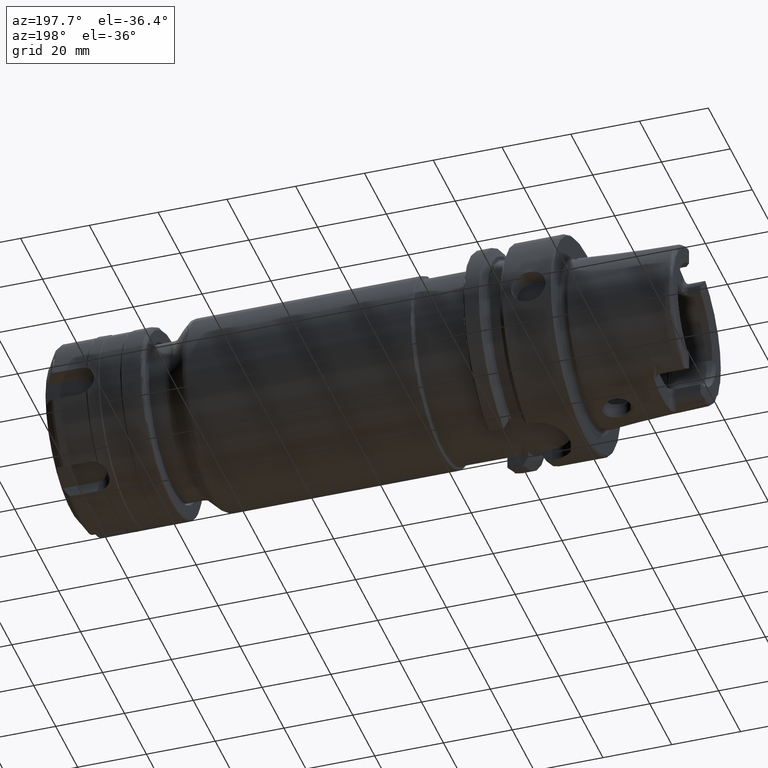
[diagram: clean part render]
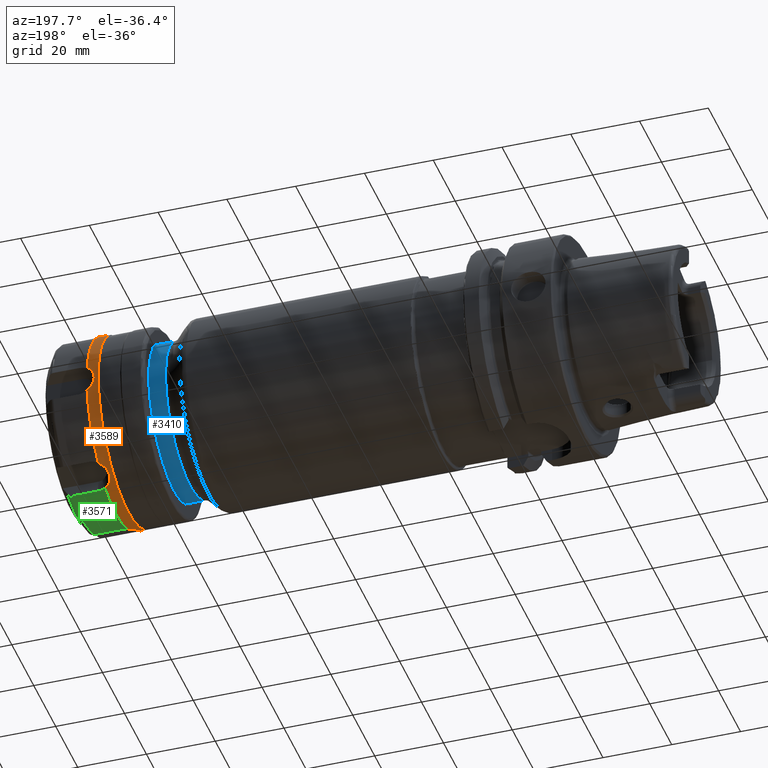
[diagram: same view with three faces highlighted in distinct colors, each labeled with its STEP entity id]
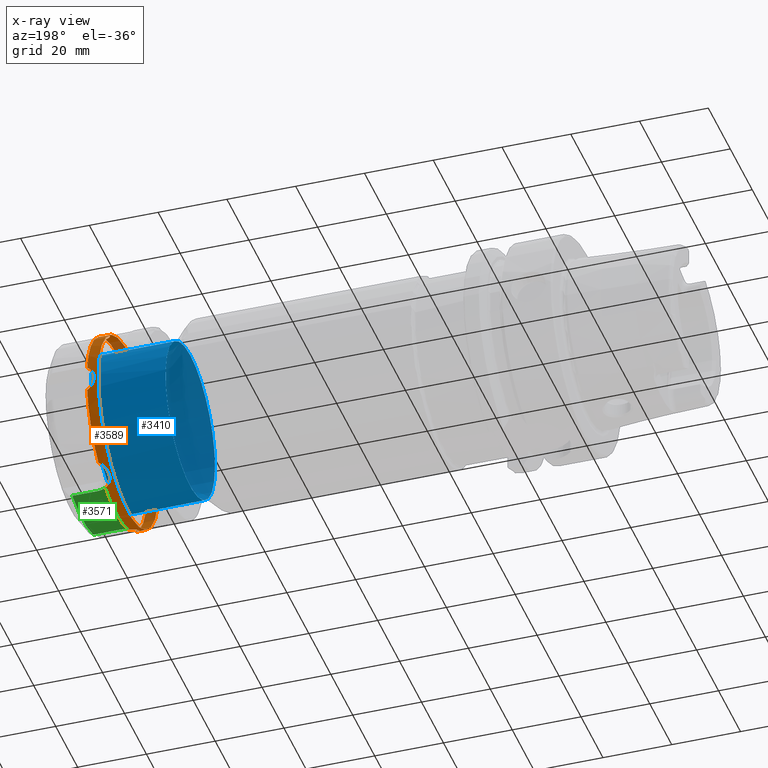
[diagram: x-ray of the same camera — body ghosted, the three highlighted faces saturated]
A machine part, auxiliary view with three faces highlighted in distinct colors.
The next image is the same camera in x-ray (body ghosted, the three faces saturated) — at least one of them is partly hidden behind the body in this view.
Their STEP definitions:

[orange] entity #3589 — the highlighted cylindrical surface (bore or boss wall) has radius 27.5 mm, axis along (1, 0, 0).
#229=B_SPLINE_CURVE_WITH_KNOTS('',3,(#6915,#6916,#6917,#6918,#6919,#6920,
#6921,#6922,#6923,#6924,#6925,#6926,#6927,#6928),.UNSPECIFIED.,.F.,.F.,
(4,2,2,2,2,2,4),(1.67211865122353,1.76211058881289,1.93906337275556,2.11601615669822,
2.29296894064089,2.46992172458355,2.55991366217291),.UNSPECIFIED.);
#236=B_SPLINE_CURVE_WITH_KNOTS('',3,(#7007,#7008,#7009,#7010,#7011,#7012,
#7013,#7014,#7015,#7016,#7017,#7018,#7019,#7020),.UNSPECIFIED.,.F.,.F.,
(4,2,2,2,2,2,4),(1.67211865122353,1.76211058881289,1.93906337275556,2.11601615669822,
2.29296894064089,2.46992172458355,2.55991366217291),.UNSPECIFIED.);
#243=B_SPLINE_CURVE_WITH_KNOTS('',3,(#7103,#7104,#7105,#7106,#7107,#7108,
#7109,#7110),.UNSPECIFIED.,.F.,.F.,(4,2,2,4),(2.11601615669822,2.29296894064089,
2.46992172458355,2.55991366217291),.UNSPECIFIED.);
#244=B_SPLINE_CURVE_WITH_KNOTS('',3,(#7112,#7113,#7114,#7115,#7116,#7117,
#7118,#7119),.UNSPECIFIED.,.F.,.F.,(4,2,2,4),(1.67211865122353,1.76211058881289,
1.93906337275556,2.11601615669822),.UNSPECIFIED.);
#251=B_SPLINE_CURVE_WITH_KNOTS('',3,(#7198,#7199,#7200,#7201,#7202,#7203,
#7204,#7205,#7206,#7207,#7208,#7209,#7210,#7211),.UNSPECIFIED.,.F.,.F.,
(4,2,2,2,2,2,4),(1.67211865122353,1.76211058881289,1.93906337275556,2.11601615669822,
2.29296894064089,2.46992172458355,2.55991366217291),.UNSPECIFIED.);
#258=B_SPLINE_CURVE_WITH_KNOTS('',3,(#7290,#7291,#7292,#7293,#7294,#7295,
#7296,#7297,#7298,#7299,#7300,#7301,#7302,#7303),.UNSPECIFIED.,.F.,.F.,
(4,2,2,2,2,2,4),(1.67211865122353,1.76211058881289,1.93906337275556,2.11601615669822,
2.29296894064089,2.46992172458355,2.55991366217292),.UNSPECIFIED.);
#267=B_SPLINE_CURVE_WITH_KNOTS('',3,(#7443,#7444,#7445,#7446,#7447,#7448,
#7449,#7450,#7451,#7452,#7453,#7454,#7455,#7456),.UNSPECIFIED.,.F.,.F.,
(4,2,2,2,2,2,4),(1.67211865122336,1.76211058881289,1.93906337275556,2.11601615669822,
2.29296894064089,2.46992172458355,2.55991366217308),.UNSPECIFIED.);
#362=CYLINDRICAL_SURFACE('',#4081,27.5);
#563=FACE_OUTER_BOUND('',#783,.T.);
#783=EDGE_LOOP('',(#3315,#3316,#3317,#3318,#3319,#3320,#3321,#3322,#3323,
#3324,#3325,#3326,#3327,#3328,#3329,#3330));
#955=LINE('',#7559,#1123);
#1123=VECTOR('',#5108,27.5);
#1302=CIRCLE('',#4008,27.5);
#1303=CIRCLE('',#4010,27.5);
#1304=CIRCLE('',#4012,27.5);
#1305=CIRCLE('',#4014,27.5);
#1306=CIRCLE('',#4016,27.5);
#1342=CIRCLE('',#4080,27.5);
#1343=CIRCLE('',#4082,27.5);
#1585=VERTEX_POINT('',#6909);
#1586=VERTEX_POINT('',#6914);
#1601=VERTEX_POINT('',#7001);
#1602=VERTEX_POINT('',#7006);
#1618=VERTEX_POINT('',#7097);
#1619=VERTEX_POINT('',#7102);
#1620=VERTEX_POINT('',#7111);
#1635=VERTEX_POINT('',#7192);
#1636=VERTEX_POINT('',#7197);
#1651=VERTEX_POINT('',#7284);
#1652=VERTEX_POINT('',#7289);
#1667=VERTEX_POINT('',#7413);
#1668=VERTEX_POINT('',#7420);
#1699=VERTEX_POINT('',#7554);
#2069=EDGE_CURVE('',#1586,#1585,#229,.T.);
#2088=EDGE_CURVE('',#1602,#1601,#236,.T.);
#2108=EDGE_CURVE('',#1619,#1618,#243,.T.);
#2109=EDGE_CURVE('',#1620,#1619,#244,.T.);
#2128=EDGE_CURVE('',#1636,#1635,#251,.T.);
#2147=EDGE_CURVE('',#1652,#1651,#258,.T.);
#2184=EDGE_CURVE('',#1586,#1667,#1302,.T.);
#2187=EDGE_CURVE('',#1668,#1651,#1303,.T.);
#2188=EDGE_CURVE('',#1652,#1635,#1304,.T.);
#2189=EDGE_CURVE('',#1636,#1618,#1305,.T.);
#2190=EDGE_CURVE('',#1620,#1601,#1306,.T.);
#2196=EDGE_CURVE('',#1668,#1667,#267,.T.);
#2242=EDGE_CURVE('',#1699,#1699,#1342,.T.);
#2244=EDGE_CURVE('',#1602,#1585,#1343,.T.);
#2245=EDGE_CURVE('',#1619,#1699,#955,.T.);
#3315=ORIENTED_EDGE('',*,*,#2069,.T.);
#3316=ORIENTED_EDGE('',*,*,#2244,.F.);
#3317=ORIENTED_EDGE('',*,*,#2088,.T.);
#3318=ORIENTED_EDGE('',*,*,#2190,.F.);
#3319=ORIENTED_EDGE('',*,*,#2109,.T.);
#3320=ORIENTED_EDGE('',*,*,#2245,.T.);
#3321=ORIENTED_EDGE('',*,*,#2242,.T.);
#3322=ORIENTED_EDGE('',*,*,#2245,.F.);
#3323=ORIENTED_EDGE('',*,*,#2108,.T.);
#3324=ORIENTED_EDGE('',*,*,#2189,.F.);
#3325=ORIENTED_EDGE('',*,*,#2128,.T.);
#3326=ORIENTED_EDGE('',*,*,#2188,.F.);
#3327=ORIENTED_EDGE('',*,*,#2147,.T.);
#3328=ORIENTED_EDGE('',*,*,#2187,.F.);
#3329=ORIENTED_EDGE('',*,*,#2196,.T.);
#3330=ORIENTED_EDGE('',*,*,#2184,.F.);
#3589=ADVANCED_FACE('',(#563),#362,.T.);
#4008=AXIS2_PLACEMENT_3D('',#7414,#4942,#4943);
#4010=AXIS2_PLACEMENT_3D('',#7425,#4946,#4947);
#4012=AXIS2_PLACEMENT_3D('',#7427,#4950,#4951);
#4014=AXIS2_PLACEMENT_3D('',#7429,#4954,#4955);
#4016=AXIS2_PLACEMENT_3D('',#7431,#4958,#4959);
#4080=AXIS2_PLACEMENT_3D('',#7555,#5101,#5102);
#4081=AXIS2_PLACEMENT_3D('',#7557,#5104,#5105);
#4082=AXIS2_PLACEMENT_3D('',#7558,#5106,#5107);
#4942=DIRECTION('center_axis',(1.,0.,0.));
#4943=DIRECTION('ref_axis',(0.,0.,-1.));
#4946=DIRECTION('center_axis',(1.,0.,0.));
#4947=DIRECTION('ref_axis',(0.,0.,-1.));
#4950=DIRECTION('center_axis',(1.,0.,0.));
#4951=DIRECTION('ref_axis',(0.,0.,-1.));
#4954=DIRECTION('center_axis',(1.,0.,0.));
#4955=DIRECTION('ref_axis',(0.,0.,-1.));
#4958=DIRECTION('center_axis',(1.,0.,0.));
#4959=DIRECTION('ref_axis',(0.,0.,-1.));
#5101=DIRECTION('center_axis',(1.,0.,0.));
#5102=DIRECTION('ref_axis',(0.,0.,-1.));
#5104=DIRECTION('center_axis',(1.,0.,0.));
#5105=DIRECTION('ref_axis',(0.,1.,0.));
#5106=DIRECTION('center_axis',(1.,0.,0.));
#5107=DIRECTION('ref_axis',(0.,0.,-1.));
#5108=DIRECTION('',(-1.,0.,0.));
#6909=CARTESIAN_POINT('',(16.6535898384862,10.2803707243943,-25.5061556838544));
#6914=CARTESIAN_POINT('',(16.6535898384862,16.9487934129016,-21.6561400495745));
#6915=CARTESIAN_POINT('Ctrl Pts',(16.6535898384862,16.9487934129016,-21.6561400495745));
#6916=CARTESIAN_POINT('Ctrl Pts',(16.3884702877858,16.8149042778394,-21.7609260033597));
#6917=CARTESIAN_POINT('Ctrl Pts',(16.1442823730407,16.6610562821937,-21.87926723216));
#6918=CARTESIAN_POINT('Ctrl Pts',(15.5022075977321,16.1681339512873,-22.2487798936235));
#6919=CARTESIAN_POINT('Ctrl Pts',(15.129202068651,15.745930874919,-22.5531400803684));
#6920=CARTESIAN_POINT('Ctrl Pts',(14.6318687392365,14.7926188273117,-23.189585921526));
#6921=CARTESIAN_POINT('Ctrl Pts',(14.5077220395086,14.2608186872157,-23.520777297501));
#6922=CARTESIAN_POINT('Ctrl Pts',(14.5077220395086,13.2391813127842,-24.1106199106432));
#6923=CARTESIAN_POINT('Ctrl Pts',(14.6318687392365,12.6864610976276,-24.4055766537149));
#6924=CARTESIAN_POINT('Ctrl Pts',(15.129202068651,11.6586268072485,-24.9129461840978));
#6925=CARTESIAN_POINT('Ctrl Pts',(15.5022075977321,11.1839416154427,-25.1264046804163));
#6926=CARTESIAN_POINT('Ctrl Pts',(16.1442823730407,10.6174730981421,-25.3685316103421));
#6927=CARTESIAN_POINT('Ctrl Pts',(16.3884702877858,10.4380625898632,-25.4425972684924));
#6928=CARTESIAN_POINT('Ctrl Pts',(16.6535898384862,10.2803707243943,-25.5061556838544));
#7001=CARTESIAN_POINT('',(16.6535898384862,-16.9487934129016,-21.6561400495745));
#7006=CARTESIAN_POINT('',(16.6535898384862,-10.2803707243943,-25.5061556838544));
#7007=CARTESIAN_POINT('Ctrl Pts',(16.6535898384862,-10.2803707243943,-25.5061556838544));
#7008=CARTESIAN_POINT('Ctrl Pts',(16.3884702877858,-10.4380625898632,-25.4425972684924));
#7009=CARTESIAN_POINT('Ctrl Pts',(16.1442823730407,-10.6174730981421,-25.3685316103421));
#7010=CARTESIAN_POINT('Ctrl Pts',(15.5022075977321,-11.1839416154427,-25.1264046804163));
#7011=CARTESIAN_POINT('Ctrl Pts',(15.129202068651,-11.6586268072485,-24.9129461840978));
#7012=CARTESIAN_POINT('Ctrl Pts',(14.6318687392365,-12.6864610976277,-24.4055766537149));
#7013=CARTESIAN_POINT('Ctrl Pts',(14.5077220395086,-13.2391813127843,-24.1106199106432));
#7014=CARTESIAN_POINT('Ctrl Pts',(14.5077220395086,-14.2608186872158,-23.5207772975009));
#7015=CARTESIAN_POINT('Ctrl Pts',(14.6318687392365,-14.7926188273117,-23.189585921526));
#7016=CARTESIAN_POINT('Ctrl Pts',(15.1292020686509,-15.7459308749191,-22.5531400803684));
#7017=CARTESIAN_POINT('Ctrl Pts',(15.5022075977321,-16.1681339512874,-22.2487798936235));
#7018=CARTESIAN_POINT('Ctrl Pts',(16.1442823730407,-16.6610562821938,-21.87926723216));
#7019=CARTESIAN_POINT('Ctrl Pts',(16.3884702877858,-16.8149042778394,-21.7609260033597));
#7020=CARTESIAN_POINT('Ctrl Pts',(16.6535898384862,-16.9487934129016,-21.6561400495745));
#7097=CARTESIAN_POINT('',(16.6535898384862,-27.2291641372959,3.8500156342799));
#7102=CARTESIAN_POINT('',(14.5077220395086,-27.5,3.28389883305486E-16));
#7103=CARTESIAN_POINT('Ctrl Pts',(14.5077220395086,-27.5,4.30211422042248E-15));
#7104=CARTESIAN_POINT('Ctrl Pts',(14.5077220395086,-27.5,0.58984261314222));
#7105=CARTESIAN_POINT('Ctrl Pts',(14.6318687392365,-27.4790799249393,1.21599073218888));
#7106=CARTESIAN_POINT('Ctrl Pts',(15.129202068651,-27.4045576821675,2.35980610372945));
#7107=CARTESIAN_POINT('Ctrl Pts',(15.5022075977321,-27.3520755667301,2.87762478679277));
#7108=CARTESIAN_POINT('Ctrl Pts',(16.1442823730407,-27.2785293803359,3.48926437818212));
#7109=CARTESIAN_POINT('Ctrl Pts',(16.3884702877858,-27.2529668677026,3.68167126513267));
#7110=CARTESIAN_POINT('Ctrl Pts',(16.6535898384862,-27.2291641372959,3.8500156342799));
#7111=CARTESIAN_POINT('',(16.6535898384862,-27.2291641372959,-3.85001563427989));
#7112=CARTESIAN_POINT('Ctrl Pts',(16.6535898384862,-27.2291641372959,-3.85001563427989));
#7113=CARTESIAN_POINT('Ctrl Pts',(16.3884702877858,-27.2529668677026,-3.68167126513266));
#7114=CARTESIAN_POINT('Ctrl Pts',(16.1442823730407,-27.2785293803359,-3.48926437818212));
#7115=CARTESIAN_POINT('Ctrl Pts',(15.5022075977321,-27.3520755667301,-2.87762478679276));
#7116=CARTESIAN_POINT('Ctrl Pts',(15.129202068651,-27.4045576821675,-2.35980610372944));
#7117=CARTESIAN_POINT('Ctrl Pts',(14.6318687392365,-27.4790799249393,-1.21599073218887));
#7118=CARTESIAN_POINT('Ctrl Pts',(14.5077220395086,-27.5,-0.589842613142211));
#7119=CARTESIAN_POINT('Ctrl Pts',(14.5077220395086,-27.5,5.55111512312578E-15));
#7192=CARTESIAN_POINT('',(16.6535898384862,-10.2803707243943,25.5061556838544));
#7197=CARTESIAN_POINT('',(16.6535898384862,-16.9487934129016,21.6561400495745));
#7198=CARTESIAN_POINT('Ctrl Pts',(16.6535898384862,-16.9487934129016,21.6561400495745));
#7199=CARTESIAN_POINT('Ctrl Pts',(16.3884702877858,-16.8149042778394,21.7609260033597));
#7200=CARTESIAN_POINT('Ctrl Pts',(16.1442823730407,-16.6610562821938,21.87926723216));
#7201=CARTESIAN_POINT('Ctrl Pts',(15.5022075977321,-16.1681339512874,22.2487798936235));
#7202=CARTESIAN_POINT('Ctrl Pts',(15.129202068651,-15.745930874919,22.5531400803684));
#7203=CARTESIAN_POINT('Ctrl Pts',(14.6318687392365,-14.7926188273117,23.189585921526));
#7204=CARTESIAN_POINT('Ctrl Pts',(14.5077220395086,-14.2608186872157,23.520777297501));
#7205=CARTESIAN_POINT('Ctrl Pts',(14.5077220395086,-13.2391813127842,24.1106199106432));
#7206=CARTESIAN_POINT('Ctrl Pts',(14.6318687392365,-12.6864610976277,24.4055766537149));
#7207=CARTESIAN_POINT('Ctrl Pts',(15.129202068651,-11.6586268072485,24.9129461840978));
#7208=CARTESIAN_POINT('Ctrl Pts',(15.5022075977321,-11.1839416154427,25.1264046804163));
#7209=CARTESIAN_POINT('Ctrl Pts',(16.1442823730407,-10.6174730981421,25.3685316103421));
#7210=CARTESIAN_POINT('Ctrl Pts',(16.3884702877858,-10.4380625898632,25.4425972684924));
#7211=CARTESIAN_POINT('Ctrl Pts',(16.6535898384862,-10.2803707243943,25.5061556838544));
#7284=CARTESIAN_POINT('',(16.6535898384862,16.9487934129016,21.6561400495745));
#7289=CARTESIAN_POINT('',(16.6535898384862,10.2803707243943,25.5061556838544));
#7290=CARTESIAN_POINT('Ctrl Pts',(16.6535898384862,10.2803707243943,25.5061556838544));
#7291=CARTESIAN_POINT('Ctrl Pts',(16.3884702877858,10.4380625898632,25.4425972684924));
#7292=CARTESIAN_POINT('Ctrl Pts',(16.1442823730407,10.6174730981421,25.3685316103421));
#7293=CARTESIAN_POINT('Ctrl Pts',(15.5022075977321,11.1839416154427,25.1264046804163));
#7294=CARTESIAN_POINT('Ctrl Pts',(15.129202068651,11.6586268072485,24.9129461840978));
#7295=CARTESIAN_POINT('Ctrl Pts',(14.6318687392365,12.6864610976277,24.4055766537149));
#7296=CARTESIAN_POINT('Ctrl Pts',(14.5077220395086,13.2391813127843,24.1106199106432));
#7297=CARTESIAN_POINT('Ctrl Pts',(14.5077220395086,14.2608186872158,23.520777297501));
#7298=CARTESIAN_POINT('Ctrl Pts',(14.6318687392365,14.7926188273117,23.189585921526));
#7299=CARTESIAN_POINT('Ctrl Pts',(15.129202068651,15.7459308749191,22.5531400803684));
#7300=CARTESIAN_POINT('Ctrl Pts',(15.5022075977321,16.1681339512874,22.2487798936235));
#7301=CARTESIAN_POINT('Ctrl Pts',(16.1442823730407,16.6610562821938,21.87926723216));
#7302=CARTESIAN_POINT('Ctrl Pts',(16.3884702877858,16.8149042778394,21.7609260033597));
#7303=CARTESIAN_POINT('Ctrl Pts',(16.6535898384862,16.9487934129016,21.6561400495745));
#7413=CARTESIAN_POINT('',(16.6535898384862,27.2291641372954,-3.85001563428317));
#7414=CARTESIAN_POINT('Origin',(16.6535898384862,0.,0.));
#7420=CARTESIAN_POINT('',(16.6535898384862,27.2291641372954,3.85001563428317));
#7425=CARTESIAN_POINT('Origin',(16.6535898384862,0.,0.));
#7427=CARTESIAN_POINT('Origin',(16.6535898384862,0.,0.));
#7429=CARTESIAN_POINT('Origin',(16.6535898384862,0.,0.));
#7431=CARTESIAN_POINT('Origin',(16.6535898384862,0.,0.));
#7443=CARTESIAN_POINT('Ctrl Pts',(16.6535898384877,27.2291641372957,3.85001563428085));
#7444=CARTESIAN_POINT('Ctrl Pts',(16.3884702877867,27.2529668677025,3.68167126513339));
#7445=CARTESIAN_POINT('Ctrl Pts',(16.1442823730411,27.2785293803358,3.48926437818251));
#7446=CARTESIAN_POINT('Ctrl Pts',(15.5022075977321,27.3520755667301,2.87762478679277));
#7447=CARTESIAN_POINT('Ctrl Pts',(15.129202068651,27.4045576821675,2.35980610372945));
#7448=CARTESIAN_POINT('Ctrl Pts',(14.6318687392365,27.4790799249393,1.21599073218888));
#7449=CARTESIAN_POINT('Ctrl Pts',(14.5077220395086,27.5,0.589842613142218));
#7450=CARTESIAN_POINT('Ctrl Pts',(14.5077220395086,27.5,-0.589842613142216));
#7451=CARTESIAN_POINT('Ctrl Pts',(14.6318687392365,27.4790799249393,-1.21599073218888));
#7452=CARTESIAN_POINT('Ctrl Pts',(15.129202068651,27.4045576821675,-2.35980610372944));
#7453=CARTESIAN_POINT('Ctrl Pts',(15.5022075977321,27.3520755667301,-2.87762478679276));
#7454=CARTESIAN_POINT('Ctrl Pts',(16.1442823730411,27.2785293803358,-3.48926437818251));
#7455=CARTESIAN_POINT('Ctrl Pts',(16.3884702877867,27.2529668677025,-3.68167126513339));
#7456=CARTESIAN_POINT('Ctrl Pts',(16.6535898384877,27.2291641372957,-3.85001563428085));
#7554=CARTESIAN_POINT('',(13.3464101615138,-27.5,-3.36777869765522E-15));
#7555=CARTESIAN_POINT('Origin',(13.3464101615138,0.,0.));
#7557=CARTESIAN_POINT('Origin',(15.,0.,0.));
#7558=CARTESIAN_POINT('Origin',(16.6535898384862,0.,0.));
#7559=CARTESIAN_POINT('',(15.,-27.5,-3.36777869765522E-15));

[blue] entity #3410 — the highlighted cylindrical surface (bore or boss wall) has radius 22.5 mm, axis along (1, 0, 0).
#318=CYLINDRICAL_SURFACE('',#3719,22.5);
#384=FACE_OUTER_BOUND('',#590,.T.);
#590=EDGE_LOOP('',(#2355,#2356,#2357,#2358,#2359));
#807=LINE('',#5446,#975);
#975=VECTOR('',#4236,22.5);
#1162=CIRCLE('',#3713,22.5);
#1163=CIRCLE('',#3714,22.5);
#1167=CIRCLE('',#3720,22.5);
#1387=VERTEX_POINT('',#5431);
#1388=VERTEX_POINT('',#5433);
#1391=VERTEX_POINT('',#5444);
#1760=EDGE_CURVE('',#1387,#1388,#1162,.T.);
#1761=EDGE_CURVE('',#1388,#1387,#1163,.T.);
#1766=EDGE_CURVE('',#1391,#1391,#1167,.T.);
#1767=EDGE_CURVE('',#1391,#1388,#807,.T.);
#2355=ORIENTED_EDGE('',*,*,#1766,.F.);
#2356=ORIENTED_EDGE('',*,*,#1767,.T.);
#2357=ORIENTED_EDGE('',*,*,#1760,.F.);
#2358=ORIENTED_EDGE('',*,*,#1761,.F.);
#2359=ORIENTED_EDGE('',*,*,#1767,.F.);
#3410=ADVANCED_FACE('',(#384),#318,.T.);
#3713=AXIS2_PLACEMENT_3D('',#5434,#4219,#4220);
#3714=AXIS2_PLACEMENT_3D('',#5435,#4221,#4222);
#3719=AXIS2_PLACEMENT_3D('',#5443,#4232,#4233);
#3720=AXIS2_PLACEMENT_3D('',#5445,#4234,#4235);
#4219=DIRECTION('center_axis',(-1.,0.,0.));
#4220=DIRECTION('ref_axis',(0.,-1.,1.83697019872103E-16));
#4221=DIRECTION('center_axis',(-1.,0.,0.));
#4222=DIRECTION('ref_axis',(0.,-1.,1.83697019872103E-16));
#4232=DIRECTION('center_axis',(1.,0.,0.));
#4233=DIRECTION('ref_axis',(0.,1.,0.));
#4234=DIRECTION('center_axis',(1.,0.,0.));
#4235=DIRECTION('ref_axis',(0.,0.,-1.));
#4236=DIRECTION('',(-1.,0.,0.));
#5431=CARTESIAN_POINT('',(115.342640687119,-2.75545529808154E-15,22.5));
#5433=CARTESIAN_POINT('',(115.342640687119,-22.5,-2.75545529808154E-15));
#5434=CARTESIAN_POINT('Origin',(115.342640687119,0.,0.));
#5435=CARTESIAN_POINT('Origin',(115.342640687119,0.,0.));
#5443=CARTESIAN_POINT('Origin',(125.6,0.,0.));
#5444=CARTESIAN_POINT('',(137.1,-22.5,-2.75545529808154E-15));
#5445=CARTESIAN_POINT('Origin',(137.1,0.,0.));
#5446=CARTESIAN_POINT('',(125.6,-22.5,-2.75545529808154E-15));

[green] entity #3571 — the highlighted cylindrical surface (partial cylindrical patch) has radius 27.3 mm, axis along (1, 0, 0).
#227=B_SPLINE_CURVE_WITH_KNOTS('',3,(#6903,#6904,#6905,#6906,#6907,#6908),
 .UNSPECIFIED.,.F.,.F.,(4,2,4),(-0.223700448985444,-0.173039057270461,0.),
 .UNSPECIFIED.);
#238=B_SPLINE_CURVE_WITH_KNOTS('',3,(#7026,#7027,#7028,#7029,#7030,#7031),
 .UNSPECIFIED.,.F.,.F.,(4,2,4),(1.38914211899874,1.5621811762692,1.61284256798419),
 .UNSPECIFIED.);
#356=CYLINDRICAL_SURFACE('',#4040,27.3);
#545=FACE_OUTER_BOUND('',#760,.T.);
#760=EDGE_LOOP('',(#3242,#3243,#3244,#3245,#3246,#3247));
#910=LINE('',#6899,#1078);
#915=LINE('',#6959,#1083);
#1078=VECTOR('',#4793,10.);
#1083=VECTOR('',#4806,10.);
#1319=CIRCLE('',#4039,27.3);
#1320=CIRCLE('',#4041,27.3);
#1582=VERTEX_POINT('',#6889);
#1583=VERTEX_POINT('',#6898);
#1584=VERTEX_POINT('',#6902);
#1593=VERTEX_POINT('',#6956);
#1594=VERTEX_POINT('',#6958);
#1603=VERTEX_POINT('',#7021);
#2065=EDGE_CURVE('',#1583,#1582,#910,.T.);
#2067=EDGE_CURVE('',#1584,#1583,#227,.T.);
#2078=EDGE_CURVE('',#1594,#1593,#915,.T.);
#2090=EDGE_CURVE('',#1593,#1603,#238,.T.);
#2210=EDGE_CURVE('',#1594,#1582,#1319,.T.);
#2211=EDGE_CURVE('',#1603,#1584,#1320,.T.);
#3242=ORIENTED_EDGE('',*,*,#2065,.T.);
#3243=ORIENTED_EDGE('',*,*,#2210,.F.);
#3244=ORIENTED_EDGE('',*,*,#2078,.T.);
#3245=ORIENTED_EDGE('',*,*,#2090,.T.);
#3246=ORIENTED_EDGE('',*,*,#2211,.T.);
#3247=ORIENTED_EDGE('',*,*,#2067,.T.);
#3571=ADVANCED_FACE('',(#545),#356,.T.);
#4039=AXIS2_PLACEMENT_3D('',#7484,#5010,#5011);
#4040=AXIS2_PLACEMENT_3D('',#7485,#5012,#5013);
#4041=AXIS2_PLACEMENT_3D('',#7486,#5014,#5015);
#4793=DIRECTION('',(1.,0.,0.));
#4806=DIRECTION('',(-1.,0.,0.));
#5010=DIRECTION('center_axis',(1.,0.,0.));
#5011=DIRECTION('ref_axis',(0.,-1.,1.83697019872103E-16));
#5012=DIRECTION('center_axis',(1.,0.,0.));
#5013=DIRECTION('ref_axis',(0.,1.,0.));
#5014=DIRECTION('center_axis',(1.,0.,0.));
#5015=DIRECTION('ref_axis',(0.,0.,-1.));
#6889=CARTESIAN_POINT('',(26.5843811405924,9.53612016251718,-25.5803129817841));
#6898=CARTESIAN_POINT('',(19.25,9.53612016251718,-25.5803129817841));
#6899=CARTESIAN_POINT('',(22.2252032721884,9.53612016251718,-25.5803129817841));
#6902=CARTESIAN_POINT('',(17.,10.0661750096319,-25.3764087426779));
#6903=CARTESIAN_POINT('Ctrl Pts',(17.,10.0661750096319,-25.3764087426779));
#6904=CARTESIAN_POINT('Ctrl Pts',(17.1573913196626,9.98723575200308,-25.4077219355919));
#6905=CARTESIAN_POINT('Ctrl Pts',(17.3203768692773,9.91612214992733,-25.4355063639865));
#6906=CARTESIAN_POINT('Ctrl Pts',(18.0567480926427,9.64104093542849,-25.5419730734915));
#6907=CARTESIAN_POINT('Ctrl Pts',(18.6732031424318,9.53612016251718,-25.5803129817841));
#6908=CARTESIAN_POINT('Ctrl Pts',(19.25,9.53612016251718,-25.5803129817841));
#6956=CARTESIAN_POINT('',(19.25,-9.53612016251722,-25.5803129817841));
#6958=CARTESIAN_POINT('',(26.5843811405924,-9.53612016251722,-25.5803129817841));
#6959=CARTESIAN_POINT('',(22.2252032721884,-9.53612016251722,-25.5803129817841));
#7021=CARTESIAN_POINT('',(17.,-10.066175009632,-25.3764087426779));
#7026=CARTESIAN_POINT('Ctrl Pts',(19.25,-9.53612016251722,-25.5803129817841));
#7027=CARTESIAN_POINT('Ctrl Pts',(18.6732031424318,-9.53612016251722,-25.5803129817841));
#7028=CARTESIAN_POINT('Ctrl Pts',(18.0567480926427,-9.64104093542852,-25.5419730734915));
#7029=CARTESIAN_POINT('Ctrl Pts',(17.3203768692773,-9.91612214992736,-25.4355063639865));
#7030=CARTESIAN_POINT('Ctrl Pts',(17.1573913196626,-9.9872357520031,-25.4077219355919));
#7031=CARTESIAN_POINT('Ctrl Pts',(17.,-10.066175009632,-25.3764087426779));
#7484=CARTESIAN_POINT('Origin',(26.5843811405924,0.,0.));
#7485=CARTESIAN_POINT('Origin',(22.2252032721884,0.,0.));
#7486=CARTESIAN_POINT('Origin',(17.,0.,0.));